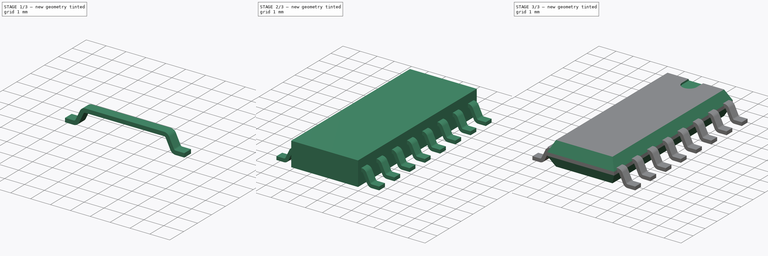
[diagram: build sequence overview — one tinted view per stage of 3, left to right]
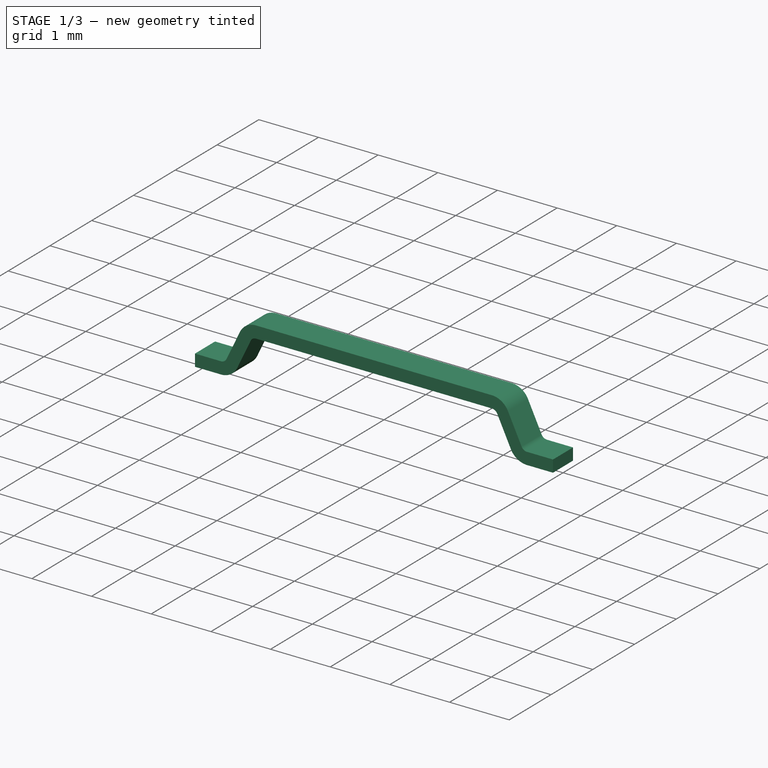
[diagram: stage 1 of 3 — iso view after this stage's code; geometry added in this stage tinted green]
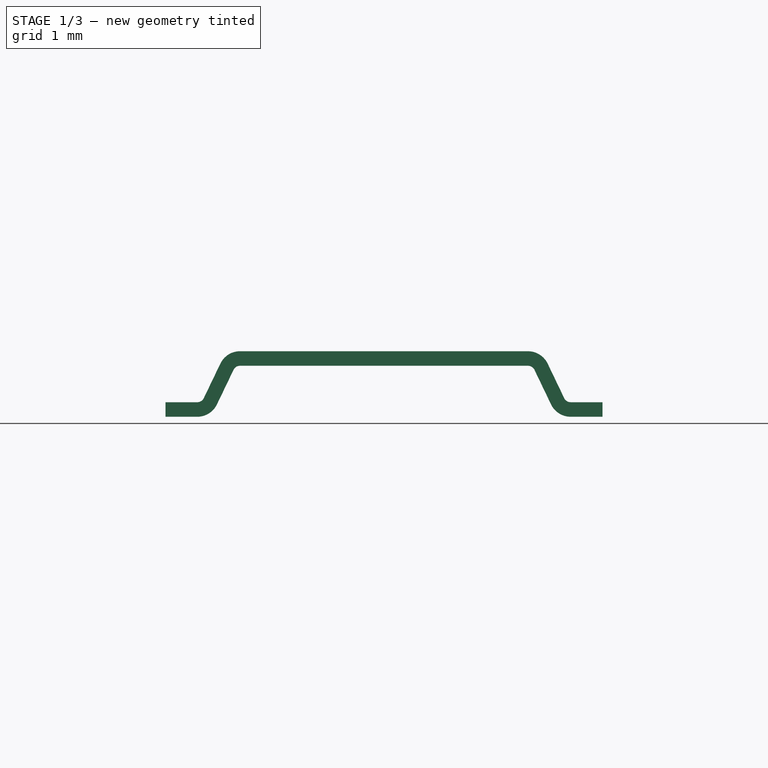
[diagram: stage 1 of 3 — front view after this stage's code; geometry added in this stage tinted green]
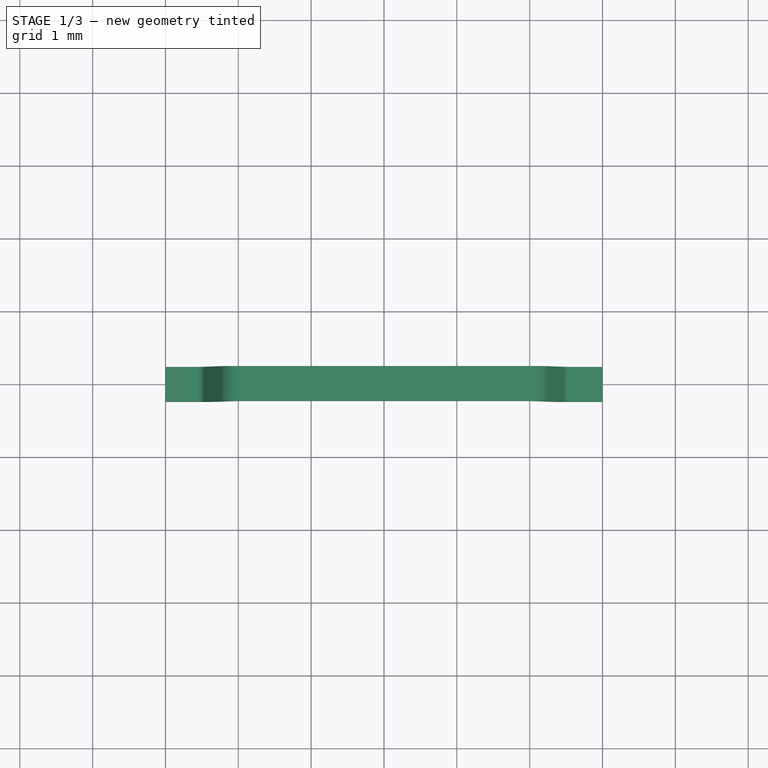
[diagram: stage 1 of 3 — top view after this stage's code; geometry added in this stage tinted green]
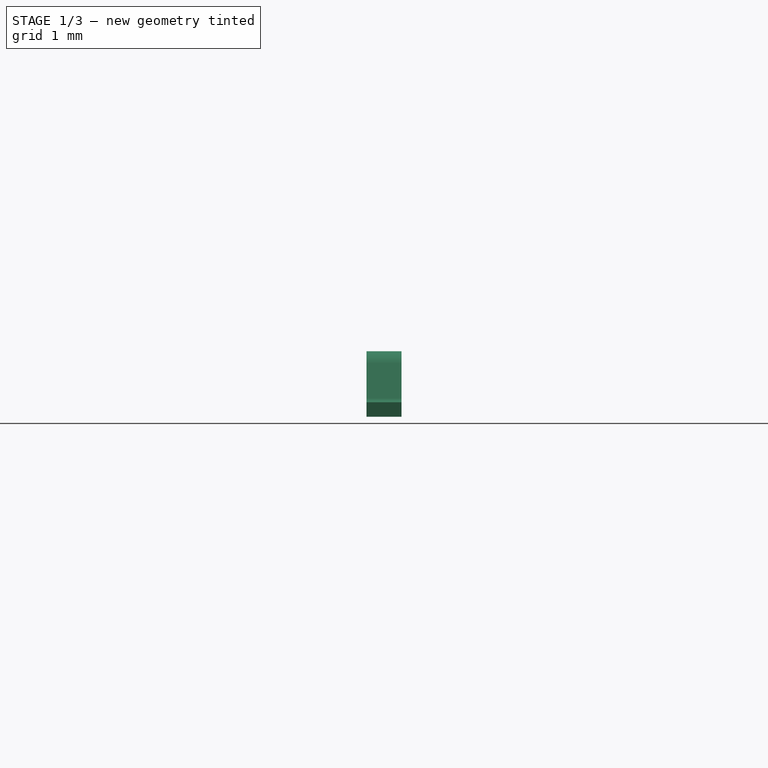
[diagram: stage 1 of 3 — right view after this stage's code; geometry added in this stage tinted green]
FCSTD DOCUMENT  (FreeCAD 0.19R24291 (Git))
Label: SOP-16L
License: All rights reserved
LicenseURL: http://en.wikipedia.org/wiki/All_rights_reserved
objects: Sketcher::SketchObject×5, PartDesign::Pocket×3, PartDesign::Pad×2, PartDesign::Body×2, PartDesign::Fillet×2, Part::FeaturePython×1
note: 21 computed .brp shape members not serialized (recipe doc carries the construction recipe); baked Part::Feature solids carry a one-line shape summary decoded from their .brp

FEATURE [PartDesign::Body] Body
  Group = -> [Sketch,Pad,Sketch001,Pocket,Sketch002,Pocket001,Sketch003,Pocket002]
  Origin = -> Origin
  Placement = pos=(0,0,0.1) rot=(0,0,1;0rad)
  Tip = -> Pocket002
FEATURE [Sketcher::SketchObject] Sketch004
  FullyConstrained = true
  MapMode = 5
  Placement = pos=(0,0,0) rot=(1,0,0;1.5708rad)
  Support = -> [XZ_Plane001]
  sketch-geometry (15):
    g0: LineSegment StartX=-3 StartY=0 StartZ=0 EndX=-2.375 EndY=0 EndZ=0
    g1: LineSegment StartX=-2.375 StartY=0 StartZ=0 EndX=-2.03913 EndY=0.7 EndZ=0
    g2: LineSegment StartX=-2.03913 StartY=0.7 StartZ=0 EndX=2.03913 EndY=0.7 EndZ=0
    g3: LineSegment StartX=2.03913 StartY=0.7 StartZ=0 EndX=2.375 EndY=0 EndZ=0
    g4: LineSegment StartX=2.375 StartY=0 StartZ=0 EndX=3 EndY=0 EndZ=0
    g5: LineSegment StartX=3 StartY=0 StartZ=0 EndX=3 EndY=0.2 EndZ=0
    g6: LineSegment StartX=3 StartY=0.2 StartZ=0 EndX=2.50087 EndY=0.2 EndZ=0
    g7: LineSegment StartX=2.50087 StartY=0.2 StartZ=0 EndX=2.165 EndY=0.9 EndZ=0
    g8: LineSegment StartX=2.165 StartY=0.9 StartZ=0 EndX=-2.165 EndY=0.9 EndZ=0
    g9: LineSegment StartX=-2.165 StartY=0.9 StartZ=0 EndX=-2.50087 EndY=0.2 EndZ=0
    g10: LineSegment StartX=-2.50087 StartY=0.2 StartZ=0 EndX=-3 EndY=0.2 EndZ=0
    g11: LineSegment StartX=-3 StartY=0.2 StartZ=0 EndX=-3 EndY=0 EndZ=0
    g12: LineSegment StartX=2.03913 StartY=0.7 StartZ=0 EndX=2.21945 EndY=0.786519 EndZ=0
    g13: LineSegment StartX=2.03913 StartY=0.7 StartZ=0 EndX=2.03913 EndY=0.9 EndZ=0
    g14: LineSegment StartX=-2.03913 StartY=0.7 StartZ=0 EndX=-2.21945 EndY=0.786519 EndZ=0
  constraints (44):
    c: PointOnObject(g0,g-1)
    c: Horizontal(g0)
    c: Coincident(g0,g1)
    c: Coincident(g1,g2)
    c: Coincident(g2,g3)
    c: PointOnObject(g3,g-1)
    c: Coincident(g3,g4)
    c: PointOnObject(g4,g-1)
    c: Coincident(g4,g5)
    c: Coincident(g5,g6)
    c: Horizontal(g6)
    c: Coincident(g6,g7)
    c: Coincident(g7,g8)
    c: Horizontal(g8)
    c: Coincident(g8,g9)
    c: Coincident(g9,g10)
    c: Horizontal(g10)
    c: Coincident(g10,g11)
    c: Coincident(g11,g0)
    c: Symmetric(g1,g2,g-2)
    c: Vertical(g11)
    c: Coincident(g12,g2)
    c: PointOnObject(g12,g7)
    c: Coincident(g13,g2)
    c: PointOnObject(g13,g8)
    c: Vertical(g13)
    c: Coincident(g14,g1)
    c: PointOnObject(g14,g9)
    c: Parallel(g1,g9)
    c: Perpendicular(g3,g12)
    c: Parallel(g3,g7)
    c: Equal(g5,g12)
    c: Equal(g12,g13)
    c: Equal(g13,g14)
    c: Equal(g14,g11)
    c: Perpendicular(g1,g14)
    c: Equal(g10,g6)
    c: Equal(g3,g1)
    c: Vertical(g5)
    c: DistanceX(g0,g4) = 6
    c: DistanceY(g5,g5) = 0.2
    c: DistanceX(g8,g8) = 4.33
    c: DistanceY(g0,g8) = 0.9
    c: DistanceX(g0,g3) = 4.75
FEATURE [PartDesign::Pad] Pad001
  Direction = (1,1,1)
  Length = 0.48
  Length2 = 100
  Midplane = true
  Placement = pos=(0,0,0) rot=(1,0,0;1.5708rad)
  Profile = -> Sketch004
  Type = 0
FEATURE [PartDesign::Fillet] Fillet
  Base = -> Pad001 [Edge29,Edge20,Edge8,Edge5]
  BaseFeature = -> Pad001
  Placement = pos=(0,0,0) rot=(1,0,0;1.5708rad)
  Radius = 0.1
  SupportTransform = false
FEATURE [PartDesign::Fillet] Fillet001
  Base = -> Fillet [Edge3,Edge44,Edge46,Edge41]
  BaseFeature = -> Fillet
  Placement = pos=(0,0,0) rot=(1,0,0;1.5708rad)
  Radius = 0.3
  SupportTransform = false
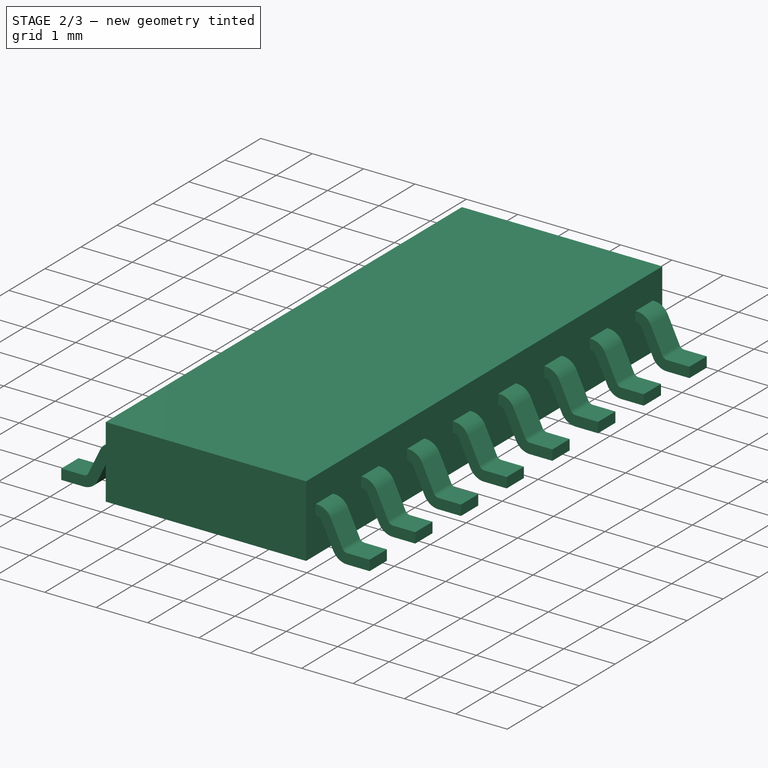
[diagram: stage 2 of 3 — iso view after this stage's code; geometry added in this stage tinted green]
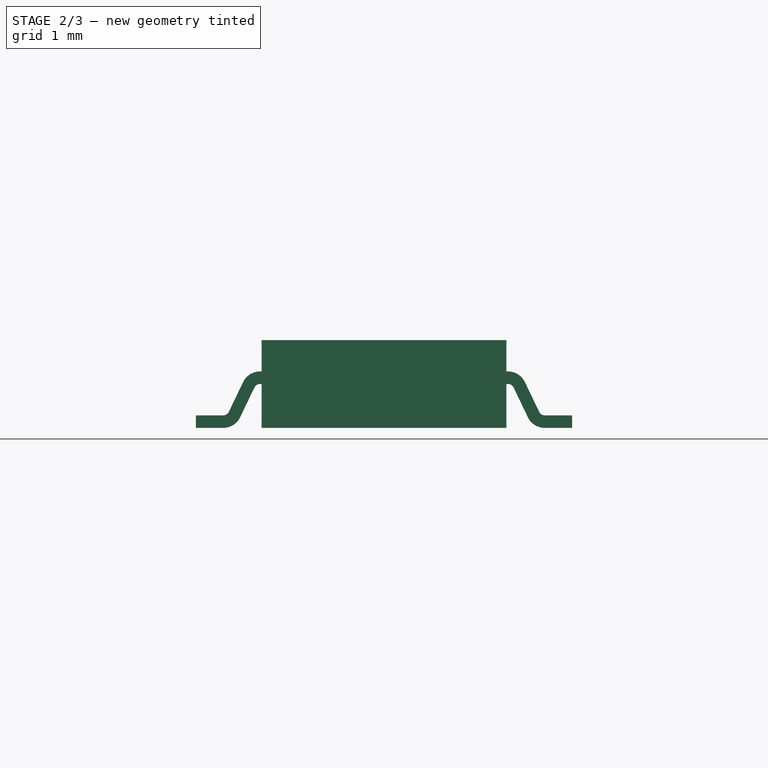
[diagram: stage 2 of 3 — front view after this stage's code; geometry added in this stage tinted green]
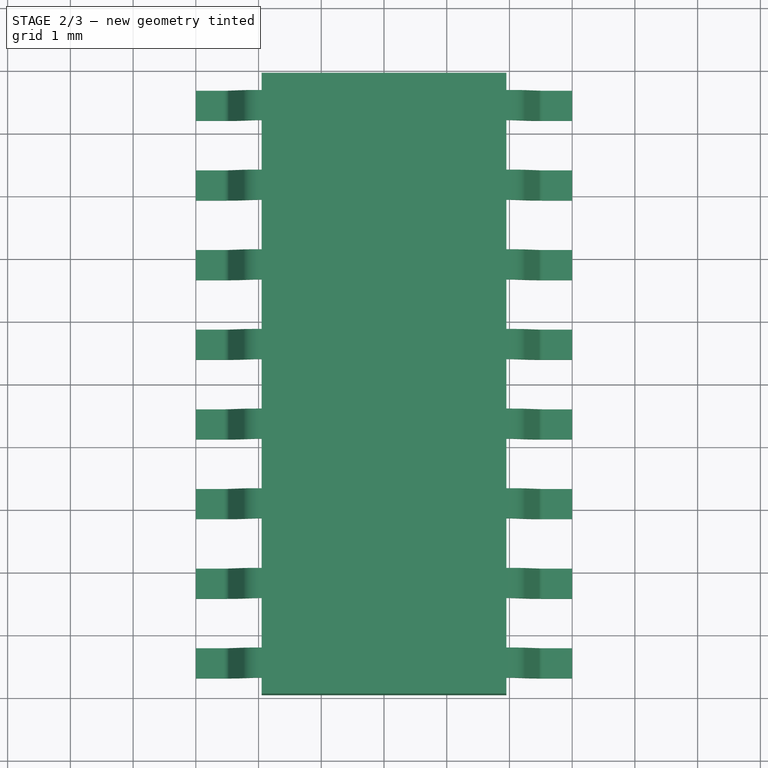
[diagram: stage 2 of 3 — top view after this stage's code; geometry added in this stage tinted green]
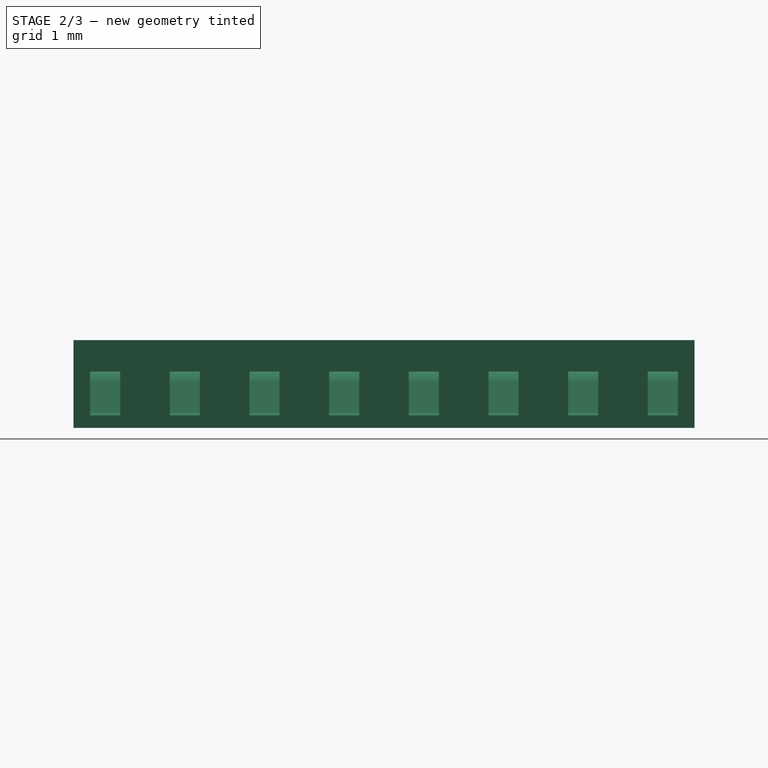
[diagram: stage 2 of 3 — right view after this stage's code; geometry added in this stage tinted green]
FEATURE [Sketcher::SketchObject] Sketch
  FullyConstrained = true
  MapMode = 5
  Support = -> [XY_Plane]
  sketch-geometry (4):
    g0: LineSegment StartX=-1.95 StartY=4.95 StartZ=0 EndX=1.95 EndY=4.95 EndZ=0
    g1: LineSegment StartX=1.95 StartY=4.95 StartZ=0 EndX=1.95 EndY=-4.95 EndZ=0
    g2: LineSegment StartX=1.95 StartY=-4.95 StartZ=0 EndX=-1.95 EndY=-4.95 EndZ=0
    g3: LineSegment StartX=-1.95 StartY=-4.95 StartZ=0 EndX=-1.95 EndY=4.95 EndZ=0
  constraints (11):
    c: Coincident(g0,g1)
    c: Coincident(g1,g2)
    c: Coincident(g2,g3)
    c: Coincident(g3,g0)
    c: Horizontal(g0)
    c: Horizontal(g2)
    c: Vertical(g1)
    c: Vertical(g3)
    c: Symmetric(g0,g1,g-1)
    c: DistanceX(g0,g0) = 3.9
    c: DistanceY(g3,g3) = 9.9
FEATURE [PartDesign::Pad] Pad
  Direction = (1,1,1)
  Length = 1.4
  Length2 = 100
  Profile = -> Sketch
  Type = 0
FEATURE [PartDesign::Body] Body001
  Group = -> [Sketch004,Pad001,Fillet,Fillet001]
  Origin = -> Origin001
  Placement = pos=(0,-4.445,0) rot=(0,0,1;0rad)
  Tip = -> Fillet001
FEATURE [Part::FeaturePython] Array  # Draft array (typed FeaturePython)
  Angle = 360
  ArrayType = 0
  Axis = (0,0,1)
  Base = -> Body001
  Center = (0,0,0)
  Count = 8
  ExpandArray = false
  Fuse = false
  IntervalAxis = (0,0,0)
  IntervalX = (100,0,0)
  IntervalY = (0,1.27,0)
  IntervalZ = (0,0,100)
  NumberCircles = 3
  NumberPolar = 5
  NumberX = 1
  NumberY = 8
  NumberZ = 1
  PlacementList = 8 placements: arithmetic series from (0,-4.445,0) step (0,1.27,0) to (0,4.445,0)
  RadialDistance = 50
  ScaleList = (8) [(1,1,1),(1,1,1),(1,1,1),(1,1,1),(1,1,1),(1,1,1),(1,1,1),(1,1,1)]
  Symmetry = 1
  TangentialDistance = 25
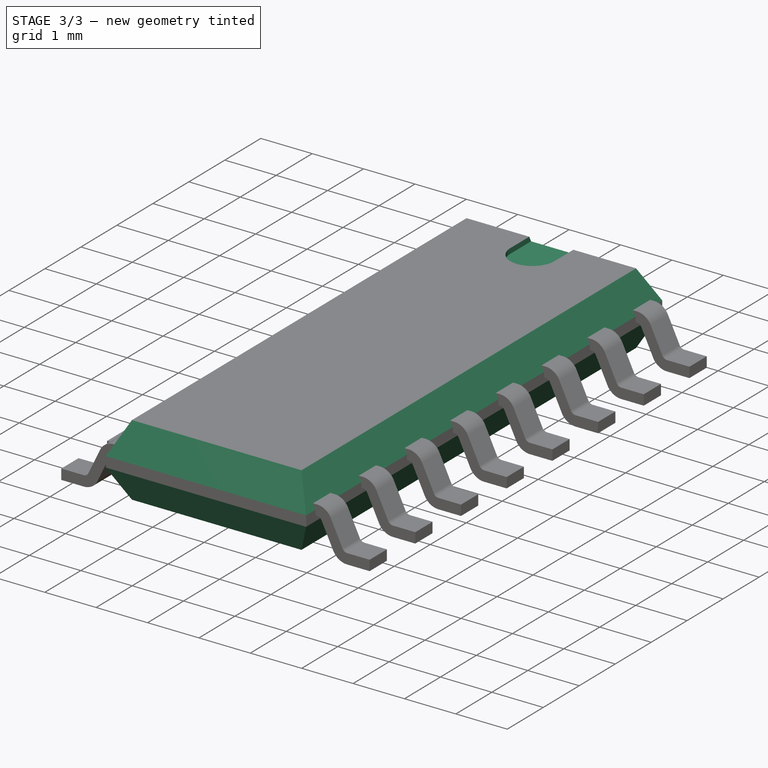
[diagram: stage 3 of 3 — iso view after this stage's code; geometry added in this stage tinted green]
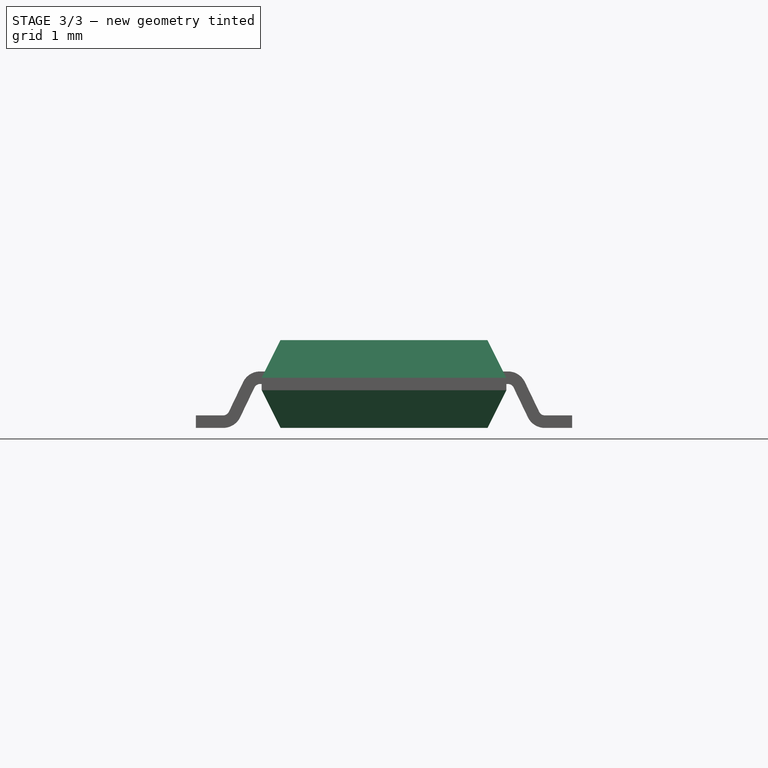
[diagram: stage 3 of 3 — front view after this stage's code; geometry added in this stage tinted green]
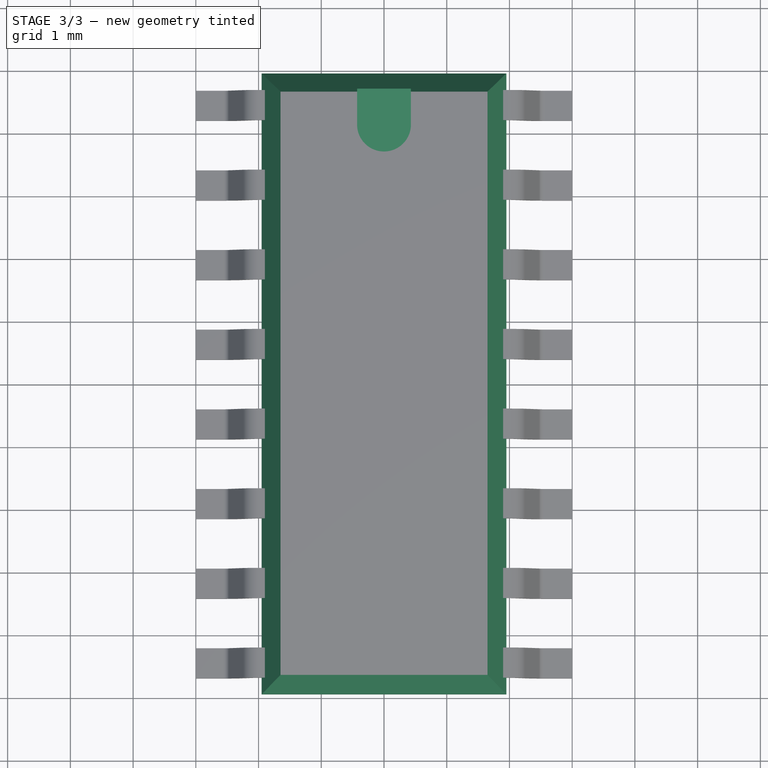
[diagram: stage 3 of 3 — top view after this stage's code; geometry added in this stage tinted green]
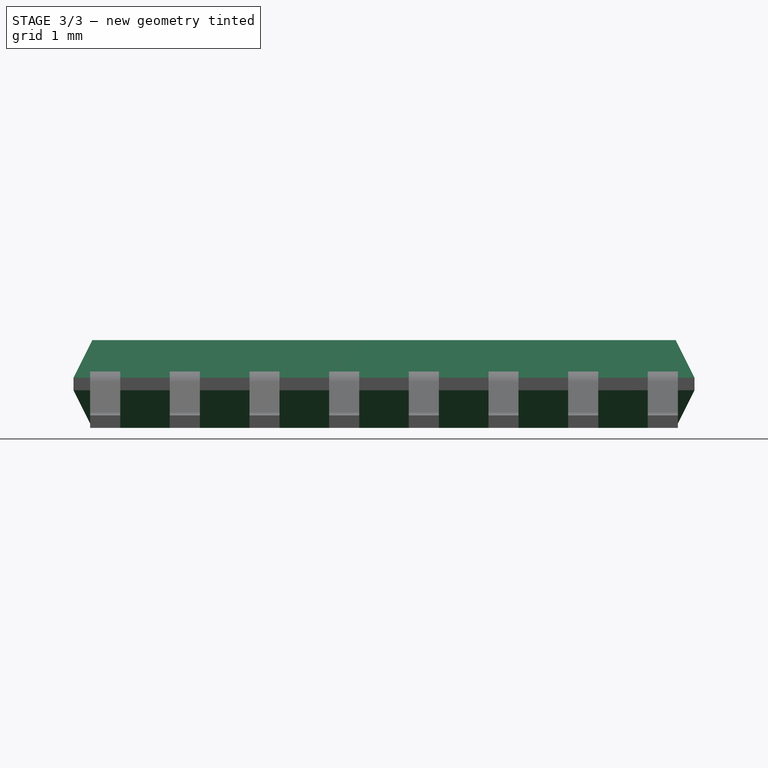
[diagram: stage 3 of 3 — right view after this stage's code; geometry added in this stage tinted green]
FEATURE [Sketcher::SketchObject] Sketch001
  ExternalGeometry = -> [Pad]
  FullyConstrained = true
  MapMode = 5
  Placement = pos=(0,-4.95,0) rot=(1,0,0;1.5708rad)
  Support = -> [Pad]
  sketch-geometry (12):
    g0: LineSegment StartX=-1.95 StartY=0.6 StartZ=0 EndX=-1.65 EndY=0 EndZ=0
    g1: LineSegment StartX=-1.65 StartY=0 StartZ=0 EndX=-1.95 EndY=0 EndZ=0
    g2: LineSegment StartX=-1.95 StartY=0 StartZ=0 EndX=-1.95 EndY=0.6 EndZ=0
    g3: LineSegment StartX=1.65 StartY=0 StartZ=0 EndX=1.95 EndY=0 EndZ=0
    g4: LineSegment StartX=1.95 StartY=0 StartZ=0 EndX=1.95 EndY=0.6 EndZ=0
    g5: LineSegment StartX=1.95 StartY=0.6 StartZ=0 EndX=1.65 EndY=0 EndZ=0
    g6: LineSegment StartX=1.95 StartY=1.4 StartZ=0 EndX=1.65 EndY=1.4 EndZ=0
    g7: LineSegment StartX=1.65 StartY=1.4 StartZ=0 EndX=1.95 EndY=0.8 EndZ=0
    g8: LineSegment StartX=1.95 StartY=0.8 StartZ=0 EndX=1.95 EndY=1.4 EndZ=0
    g9: LineSegment StartX=-1.95 StartY=1.4 StartZ=0 EndX=-1.65 EndY=1.4 EndZ=0
    g10: LineSegment StartX=-1.65 StartY=1.4 StartZ=0 EndX=-1.95 EndY=0.8 EndZ=0
    g11: LineSegment StartX=-1.95 StartY=0.8 StartZ=0 EndX=-1.95 EndY=1.4 EndZ=0
  constraints (32):
    c: PointOnObject(g0,g-5)
    c: PointOnObject(g0,g-1)
    c: Coincident(g0,g1)
    c: Coincident(g1,g-5)
    c: Coincident(g1,g2)
    c: Coincident(g2,g0)
    c: PointOnObject(g3,g-1)
    c: Coincident(g3,g-4)
    c: Coincident(g3,g4)
    c: PointOnObject(g4,g-4)
    c: Coincident(g4,g5)
    c: Coincident(g5,g3)
    c: Coincident(g-4,g6)
    c: PointOnObject(g6,g-3)
    c: Coincident(g6,g7)
    c: PointOnObject(g7,g-4)
    c: Coincident(g7,g8)
    c: Coincident(g8,g6)
    c: Coincident(g-5,g9)
    c: PointOnObject(g9,g-3)
    c: Coincident(g9,g10)
    c: PointOnObject(g10,g-5)
    c: Coincident(g10,g11)
    c: Coincident(g11,g9)
    c: Equal(g9,g6)
    c: Equal(g6,g3)
    c: Equal(g3,g1)
    c: Equal(g11,g2)
    c: Equal(g2,g4)
    c: Equal(g4,g8)
    c: DistanceX(g9,g9) = 0.3
    c: DistanceY(g2,g2) = 0.6
FEATURE [PartDesign::Pocket] Pocket
  BaseFeature = -> Pad
  Length = 5
  Length2 = 100
  Profile = -> Sketch001
  Type = 1
FEATURE [Sketcher::SketchObject] Sketch002
  ExternalGeometry = -> [Pocket]
  FullyConstrained = true
  MapMode = 5
  Placement = pos=(1.95,0,0) rot=(0.57735,0.57735,0.57735;2.0944rad)
  Support = -> [Pocket]
  sketch-geometry (12):
    g0: LineSegment StartX=4.95 StartY=0.8 StartZ=0 EndX=4.65 EndY=1.4 EndZ=0
    g1: LineSegment StartX=4.65 StartY=1.4 StartZ=0 EndX=4.95 EndY=1.4 EndZ=0
    g2: LineSegment StartX=4.95 StartY=1.4 StartZ=0 EndX=4.95 EndY=0.8 EndZ=0
    g3: LineSegment StartX=4.95 StartY=0.6 StartZ=0 EndX=4.65 EndY=0 EndZ=0
    g4: LineSegment StartX=4.65 StartY=0 StartZ=0 EndX=4.95 EndY=1e-16 EndZ=0
    g5: LineSegment StartX=4.95 StartY=1e-16 StartZ=0 EndX=4.95 EndY=0.6 EndZ=0
    g6: LineSegment StartX=-4.95 StartY=0.8 StartZ=0 EndX=-4.95 EndY=1.4 EndZ=0
    g7: LineSegment StartX=-4.95 StartY=1.4 StartZ=0 EndX=-4.65 EndY=1.4 EndZ=0
    g8: LineSegment StartX=-4.65 StartY=1.4 StartZ=0 EndX=-4.95 EndY=0.8 EndZ=0
    g9: LineSegment StartX=-4.95 StartY=0.6 StartZ=0 EndX=-4.95 EndY=0 EndZ=0
    g10: LineSegment StartX=-4.95 StartY=0 StartZ=0 EndX=-4.65 EndY=0 EndZ=0
    g11: LineSegment StartX=-4.65 StartY=0 StartZ=0 EndX=-4.95 EndY=0.6 EndZ=0
  constraints (28):
    c: Coincident(g-6,g0)
    c: PointOnObject(g0,g-7)
    c: Coincident(g0,g1)
    c: Coincident(g1,g-7)
    c: Coincident(g1,g2)
    c: Coincident(g2,g0)
    c: Coincident(g-5,g3)
    c: PointOnObject(g3,g-1)
    c: Coincident(g3,g4)
    c: Coincident(g4,g-5)
    c: Coincident(g4,g5)
    c: Coincident(g5,g3)
    c: Coincident(g-3,g6)
    c: Coincident(g6,g-7)
    c: Coincident(g6,g7)
    c: PointOnObject(g7,g-7)
    c: Coincident(g7,g8)
    c: Coincident(g8,g6)
    c: Coincident(g-4,g9)
    c: Coincident(g9,g-4)
    c: Coincident(g9,g10)
    c: PointOnObject(g10,g-1)
    c: Coincident(g10,g11)
    c: Coincident(g11,g9)
    c: Equal(g1,g4)
    c: Equal(g4,g10)
    c: Equal(g10,g7)
    c: DistanceX(g7,g7) = 0.3
FEATURE [PartDesign::Pocket] Pocket001
  BaseFeature = -> Pocket
  Length = 5
  Length2 = 100
  Profile = -> Sketch002
  Type = 1
FEATURE [Sketcher::SketchObject] Sketch003
  FullyConstrained = false
  MapMode = 5
  Placement = pos=(0,0,1.4) rot=(0,0,1;0rad)
  Support = -> [Pocket001]
  sketch-geometry (4):
    g0: ArcOfCircle CenterX=0 CenterY=4.12421 CenterZ=0 NormalX=0 NormalY=0 NormalZ=1 AngleXU=0 Radius=0.429098 StartAngle=3.14159 EndAngle=6.28319
    g1: ArcOfCircle CenterX=0 CenterY=5.29988 CenterZ=0 NormalX=0 NormalY=0 NormalZ=1 AngleXU=0 Radius=0.429098 StartAngle=0 EndAngle=3.14159
    g2: LineSegment StartX=0.429098 StartY=4.12421 StartZ=0 EndX=0.429098 EndY=5.29988 EndZ=0
    g3: LineSegment StartX=-0.429098 StartY=4.12421 StartZ=0 EndX=-0.429098 EndY=5.29988 EndZ=0
  constraints (7):
    c: Tangent(g0,g3) = 1.5708
    c: Tangent(g0,g2) = -1.5708
    c: Tangent(g2,g1) = -1.5708
    c: Tangent(g3,g1) = 1.5708
    c: Vertical(g2)
    c: Equal(g0,g1)
    c: PointOnObject(g0,g-2)
FEATURE [PartDesign::Pocket] Pocket002
  BaseFeature = -> Pocket001
  Length = 0.1
  Length2 = 100
  Profile = -> Sketch003
  Type = 0
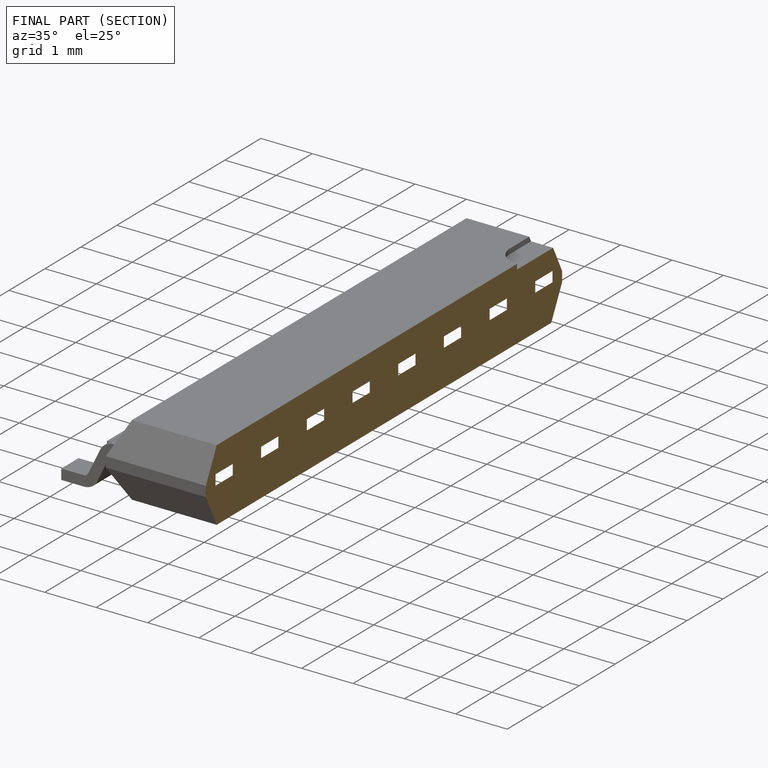
[diagram: finished part — half-section view (interior)]
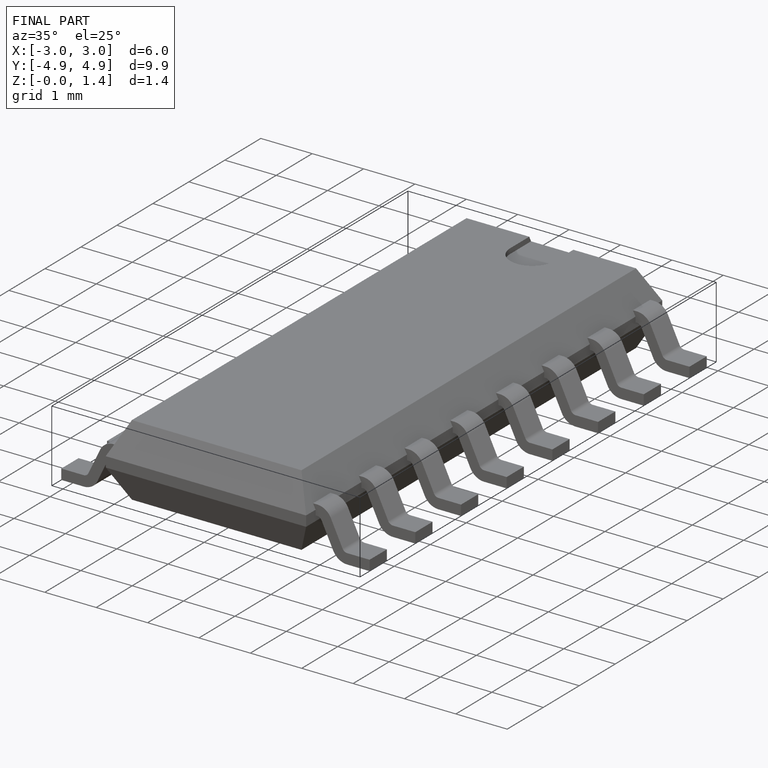
[diagram: finished part — iso view with bounding-box wireframe]
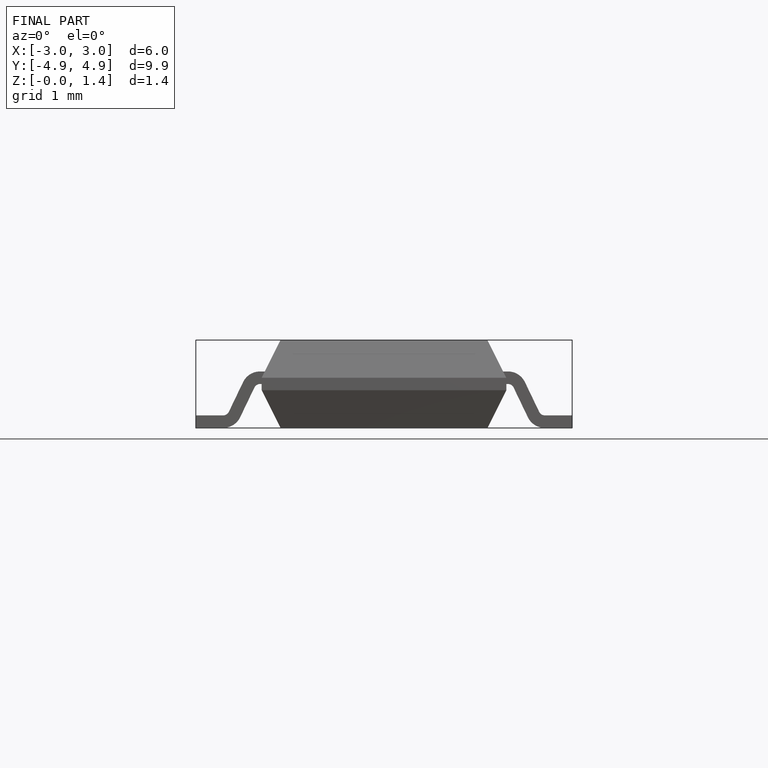
[diagram: finished part — front view with bounding-box wireframe]
